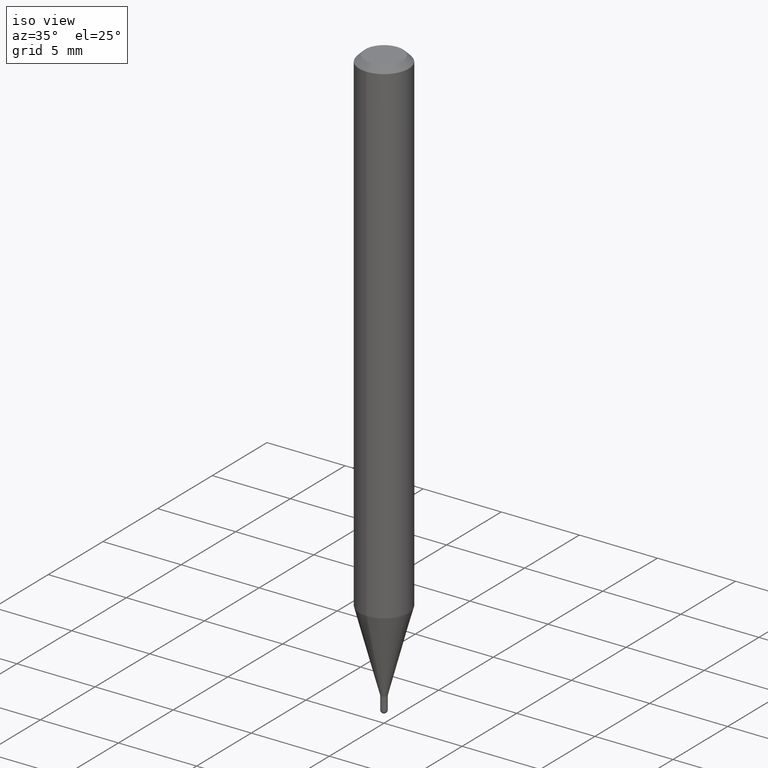
[diagram: clean part render]
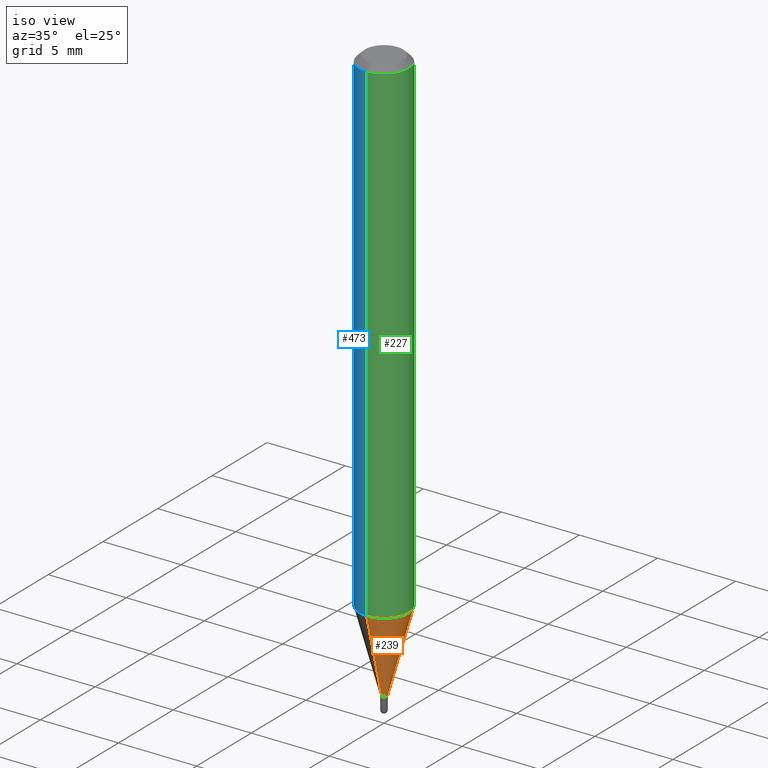
[diagram: same view with three faces highlighted in distinct colors, each labeled with its STEP entity id]
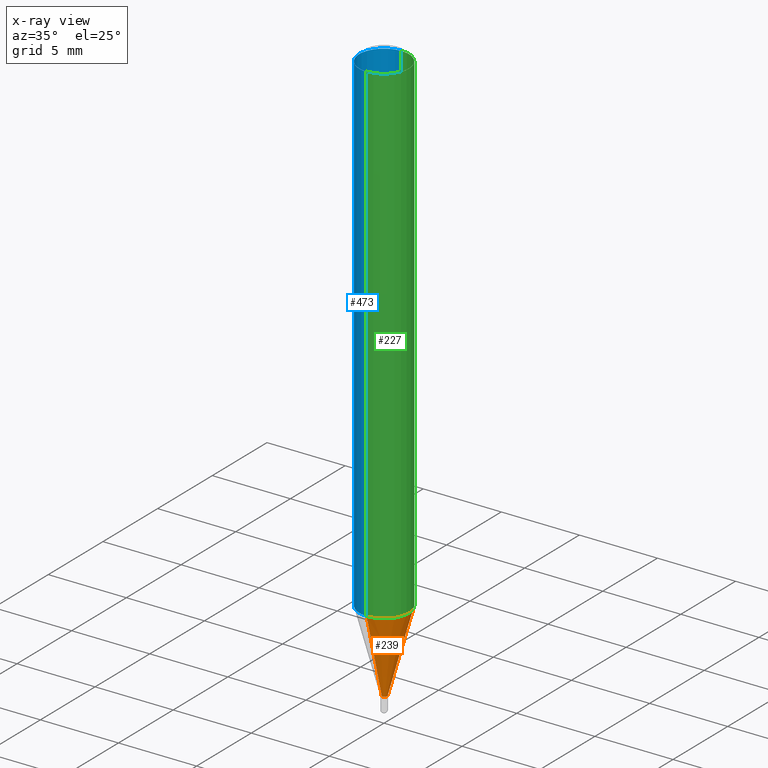
[diagram: x-ray of the same camera — body ghosted, the three highlighted faces saturated]
A machine part, iso view with three faces highlighted in distinct colors.
The next image is the same camera in x-ray (body ghosted, the three faces saturated) — at least one of them is partly hidden behind the body in this view.
Their STEP definitions:

[orange] entity #239 — the highlighted conical surface has half-angle 15 deg.
#68 = ORIENTED_EDGE ( 'NONE', *, *, #154, .T. ) ;
#72 = EDGE_CURVE ( 'NONE', #509, #439, #211, .T. ) ;
#92 = EDGE_CURVE ( 'NONE', #509, #178, #137, .T. ) ;
#94 = CARTESIAN_POINT ( 'NONE',  ( 3.060455742325940316E-29, -4.393134338761063639E-15, -1.254856820825981156 ) ) ;
#96 = CARTESIAN_POINT ( 'NONE',  ( -5.446710888591297207E-17, -0.007800000000004489974, -1.459000000000000519 ) ) ;
#102 = DIRECTION ( 'NONE',  ( -2.438888398687161749E-29, 3.500904856913780958E-15, 1.000000000000000000 ) ) ;
#134 = AXIS2_PLACEMENT_3D ( 'NONE', #94, #256, #412 ) ;
#137 = LINE ( 'NONE', #96, #465 ) ;
#154 = EDGE_CURVE ( 'NONE', #439, #202, #410, .T. ) ;
#155 = EDGE_CURVE ( 'NONE', #178, #202, #446, .T. ) ;
#178 = VERTEX_POINT ( 'NONE', #230 ) ;
#202 = VERTEX_POINT ( 'NONE', #391 ) ;
#211 = CIRCLE ( 'NONE', #401, 0.007799999999999381213 ) ;
#216 = DIRECTION ( 'NONE',  ( 1.839019923739600315E-15, 0.2588190451025249583, 0.9659258262890670910 ) ) ;
#225 = CARTESIAN_POINT ( 'NONE',  ( -5.446710888591297207E-17, -0.007800000000004489974, -1.459000000000000519 ) ) ;
#230 = CARTESIAN_POINT ( 'NONE',  ( -4.364351673553611504E-16, -0.06250000000000441314, -1.254856820825980934 ) ) ;
#239 = ADVANCED_FACE ( 'NONE', ( #352 ), #287, .T. ) ;
#256 = DIRECTION ( 'NONE',  ( -2.438888398687161749E-29, 3.500904856913780958E-15, 1.000000000000000000 ) ) ;
#265 = DIRECTION ( 'NONE',  ( -1.807323732225330139E-15, -0.2588190451025181860, 0.9659258262890689783 ) ) ;
#274 = EDGE_LOOP ( 'NONE', ( #344, #68, #443, #474 ) ) ;
#287 = CONICAL_SURFACE ( 'NONE', #413, 0.007799999999999381213, 0.2617993877991502960 ) ;
#294 = DIRECTION ( 'NONE',  ( -6.982962677686266711E-15, -1.000000000000000000, 0.000000000000000000 ) ) ;
#328 = CARTESIAN_POINT ( 'NONE',  ( 3.558338173684570517E-29, -5.107820186237207836E-15, -1.459000000000000519 ) ) ;
#340 = DIRECTION ( 'NONE',  ( -6.982962677686266711E-15, -1.000000000000000000, 0.000000000000000000 ) ) ;
#344 = ORIENTED_EDGE ( 'NONE', *, *, #72, .T. ) ;
#352 = FACE_OUTER_BOUND ( 'NONE', #274, .T. ) ;
#371 = VECTOR ( 'NONE', #216, 39.37007874015748143 ) ;
#391 = CARTESIAN_POINT ( 'NONE',  ( 4.440892098500931845E-16, 0.06249999999999561462, -1.254856820825981378 ) ) ;
#395 = CARTESIAN_POINT ( 'NONE',  ( 3.558338173684570517E-29, -5.107820186237207836E-15, -1.459000000000000519 ) ) ;
#401 = AXIS2_PLACEMENT_3D ( 'NONE', #328, #102, #294 ) ;
#410 = LINE ( 'NONE', #447, #371 ) ;
#412 = DIRECTION ( 'NONE',  ( -6.982962677686265922E-15, -1.000000000000000000, 4.370956789862819572E-15 ) ) ;
#413 = AXIS2_PLACEMENT_3D ( 'NONE', #395, #460, #340 ) ;
#439 = VERTEX_POINT ( 'NONE', #478 ) ;
#443 = ORIENTED_EDGE ( 'NONE', *, *, #155, .F. ) ;
#446 = CIRCLE ( 'NONE', #134, 0.06250000000000002776 ) ;
#447 = CARTESIAN_POINT ( 'NONE',  ( 5.542233338931899661E-17, 0.007799999999994273320, -1.459000000000000519 ) ) ;
#460 = DIRECTION ( 'NONE',  ( -2.438888398687161749E-29, 3.500904856913780958E-15, 1.000000000000000000 ) ) ;
#465 = VECTOR ( 'NONE', #265, 39.37007874015748143 ) ;
#474 = ORIENTED_EDGE ( 'NONE', *, *, #92, .F. ) ;
#478 = CARTESIAN_POINT ( 'NONE',  ( 2.497557716197062816E-16, 0.007799999999994272452, -1.459000000000000519 ) ) ;
#509 = VERTEX_POINT ( 'NONE', #225 ) ;

[blue] entity #473 — the highlighted cylindrical surface (edge-blend (fillet) strip) has radius 1.5875 mm, axis along (-0, 0, 1).
#35 = LINE ( 'NONE', #104, #484 ) ;
#49 = CARTESIAN_POINT ( 'NONE',  ( 3.658332598030829977E-31, -5.251357285370796693E-17, -0.01500000000000035853 ) ) ;
#56 = LINE ( 'NONE', #254, #80 ) ;
#59 = CARTESIAN_POINT ( 'NONE',  ( 3.060455742325940316E-29, -4.393134338761063639E-15, -1.254856820825981156 ) ) ;
#70 = ORIENTED_EDGE ( 'NONE', *, *, #506, .T. ) ;
#80 = VECTOR ( 'NONE', #483, 39.37007874015748143 ) ;
#87 = DIRECTION ( 'NONE',  ( -2.438888398687161749E-29, 3.500904856913780958E-15, 1.000000000000000000 ) ) ;
#88 = ORIENTED_EDGE ( 'NONE', *, *, #136, .F. ) ;
#93 = CYLINDRICAL_SURFACE ( 'NONE', #228, 0.06250000000000001388 ) ;
#104 = CARTESIAN_POINT ( 'NONE',  ( -4.364351673553917187E-16, -0.06250000000000001388, 2.188065535571113838E-16 ) ) ;
#127 = DIRECTION ( 'NONE',  ( -6.982962677686265922E-15, -1.000000000000000000, 3.500904856913781353E-15 ) ) ;
#136 = EDGE_CURVE ( 'NONE', #202, #505, #56, .T. ) ;
#149 = CARTESIAN_POINT ( 'NONE',  ( 4.440892098500935790E-16, 0.06249999999999996531, -0.01500000000000057884 ) ) ;
#151 = DIRECTION ( 'NONE',  ( -6.982962677686265922E-15, -1.000000000000000000, 4.370956789862819572E-15 ) ) ;
#178 = VERTEX_POINT ( 'NONE', #230 ) ;
#190 = CARTESIAN_POINT ( 'NONE',  ( -4.364351673553913736E-16, -0.06250000000000006939, -0.01500000000000013822 ) ) ;
#202 = VERTEX_POINT ( 'NONE', #391 ) ;
#206 = EDGE_CURVE ( 'NONE', #178, #236, #35, .T. ) ;
#228 = AXIS2_PLACEMENT_3D ( 'NONE', #285, #87, #127 ) ;
#230 = CARTESIAN_POINT ( 'NONE',  ( -4.364351673553611504E-16, -0.06250000000000441314, -1.254856820825980934 ) ) ;
#236 = VERTEX_POINT ( 'NONE', #190 ) ;
#237 = CIRCLE ( 'NONE', #444, 0.06250000000000001388 ) ;
#246 = EDGE_LOOP ( 'NONE', ( #88, #70, #364, #463 ) ) ;
#254 = CARTESIAN_POINT ( 'NONE',  ( 4.440892098500627148E-16, 0.06250000000000001388, -2.188065535571113838E-16 ) ) ;
#259 = AXIS2_PLACEMENT_3D ( 'NONE', #59, #418, #151 ) ;
#285 = CARTESIAN_POINT ( 'NONE',  ( 0.000000000000000000, 0.000000000000000000, 0.000000000000000000 ) ) ;
#318 = DIRECTION ( 'NONE',  ( -2.438888398687161749E-29, 3.500904856913780958E-15, 1.000000000000000000 ) ) ;
#363 = CIRCLE ( 'NONE', #259, 0.06250000000000002776 ) ;
#364 = ORIENTED_EDGE ( 'NONE', *, *, #206, .T. ) ;
#367 = FACE_OUTER_BOUND ( 'NONE', #246, .T. ) ;
#391 = CARTESIAN_POINT ( 'NONE',  ( 4.440892098500931845E-16, 0.06249999999999561462, -1.254856820825981378 ) ) ;
#418 = DIRECTION ( 'NONE',  ( -2.438888398687161749E-29, 3.500904856913780958E-15, 1.000000000000000000 ) ) ;
#431 = EDGE_CURVE ( 'NONE', #505, #236, #237, .T. ) ;
#438 = DIRECTION ( 'NONE',  ( -2.438888398687161749E-29, 3.500904856913780958E-15, 1.000000000000000000 ) ) ;
#444 = AXIS2_PLACEMENT_3D ( 'NONE', #49, #318, #485 ) ;
#463 = ORIENTED_EDGE ( 'NONE', *, *, #431, .F. ) ;
#473 = ADVANCED_FACE ( 'NONE', ( #367 ), #93, .T. ) ;
#483 = DIRECTION ( 'NONE',  ( -2.438888398687161749E-29, 3.500904856913780958E-15, 1.000000000000000000 ) ) ;
#484 = VECTOR ( 'NONE', #438, 39.37007874015748143 ) ;
#485 = DIRECTION ( 'NONE',  ( -6.982962677686265922E-15, -1.000000000000000000, 3.517254291842738179E-15 ) ) ;
#505 = VERTEX_POINT ( 'NONE', #149 ) ;
#506 = EDGE_CURVE ( 'NONE', #202, #178, #363, .T. ) ;

[green] entity #227 — the highlighted cylindrical surface (edge-blend (fillet) strip) has radius 1.5875 mm, axis along (-0, 0, 1).
#9 = ORIENTED_EDGE ( 'NONE', *, *, #136, .T. ) ;
#35 = LINE ( 'NONE', #104, #484 ) ;
#56 = LINE ( 'NONE', #254, #80 ) ;
#74 = EDGE_LOOP ( 'NONE', ( #405, #9, #248, #396 ) ) ;
#79 = CARTESIAN_POINT ( 'NONE',  ( 0.000000000000000000, 0.000000000000000000, 0.000000000000000000 ) ) ;
#80 = VECTOR ( 'NONE', #483, 39.37007874015748143 ) ;
#94 = CARTESIAN_POINT ( 'NONE',  ( 3.060455742325940316E-29, -4.393134338761063639E-15, -1.254856820825981156 ) ) ;
#104 = CARTESIAN_POINT ( 'NONE',  ( -4.364351673553917187E-16, -0.06250000000000001388, 2.188065535571113838E-16 ) ) ;
#131 = DIRECTION ( 'NONE',  ( -2.438888398687161749E-29, 3.500904856913780958E-15, 1.000000000000000000 ) ) ;
#134 = AXIS2_PLACEMENT_3D ( 'NONE', #94, #256, #412 ) ;
#136 = EDGE_CURVE ( 'NONE', #202, #505, #56, .T. ) ;
#149 = CARTESIAN_POINT ( 'NONE',  ( 4.440892098500935790E-16, 0.06249999999999996531, -0.01500000000000057884 ) ) ;
#155 = EDGE_CURVE ( 'NONE', #178, #202, #446, .T. ) ;
#170 = CIRCLE ( 'NONE', #317, 0.06250000000000001388 ) ;
#178 = VERTEX_POINT ( 'NONE', #230 ) ;
#179 = DIRECTION ( 'NONE',  ( -6.982962677686265922E-15, -1.000000000000000000, 3.517254291842738179E-15 ) ) ;
#189 = CYLINDRICAL_SURFACE ( 'NONE', #402, 0.06250000000000001388 ) ;
#190 = CARTESIAN_POINT ( 'NONE',  ( -4.364351673553913736E-16, -0.06250000000000006939, -0.01500000000000013822 ) ) ;
#202 = VERTEX_POINT ( 'NONE', #391 ) ;
#206 = EDGE_CURVE ( 'NONE', #178, #236, #35, .T. ) ;
#208 = CARTESIAN_POINT ( 'NONE',  ( 3.658332598030829977E-31, -5.251357285370796693E-17, -0.01500000000000035853 ) ) ;
#227 = ADVANCED_FACE ( 'NONE', ( #457 ), #189, .T. ) ;
#230 = CARTESIAN_POINT ( 'NONE',  ( -4.364351673553611504E-16, -0.06250000000000441314, -1.254856820825980934 ) ) ;
#236 = VERTEX_POINT ( 'NONE', #190 ) ;
#248 = ORIENTED_EDGE ( 'NONE', *, *, #339, .F. ) ;
#254 = CARTESIAN_POINT ( 'NONE',  ( 4.440892098500627148E-16, 0.06250000000000001388, -2.188065535571113838E-16 ) ) ;
#256 = DIRECTION ( 'NONE',  ( -2.438888398687161749E-29, 3.500904856913780958E-15, 1.000000000000000000 ) ) ;
#270 = DIRECTION ( 'NONE',  ( -2.438888398687161749E-29, 3.500904856913780958E-15, 1.000000000000000000 ) ) ;
#273 = DIRECTION ( 'NONE',  ( -6.982962677686265922E-15, -1.000000000000000000, 3.500904856913781353E-15 ) ) ;
#317 = AXIS2_PLACEMENT_3D ( 'NONE', #208, #131, #179 ) ;
#339 = EDGE_CURVE ( 'NONE', #236, #505, #170, .T. ) ;
#391 = CARTESIAN_POINT ( 'NONE',  ( 4.440892098500931845E-16, 0.06249999999999561462, -1.254856820825981378 ) ) ;
#396 = ORIENTED_EDGE ( 'NONE', *, *, #206, .F. ) ;
#402 = AXIS2_PLACEMENT_3D ( 'NONE', #79, #270, #273 ) ;
#405 = ORIENTED_EDGE ( 'NONE', *, *, #155, .T. ) ;
#412 = DIRECTION ( 'NONE',  ( -6.982962677686265922E-15, -1.000000000000000000, 4.370956789862819572E-15 ) ) ;
#438 = DIRECTION ( 'NONE',  ( -2.438888398687161749E-29, 3.500904856913780958E-15, 1.000000000000000000 ) ) ;
#446 = CIRCLE ( 'NONE', #134, 0.06250000000000002776 ) ;
#457 = FACE_OUTER_BOUND ( 'NONE', #74, .T. ) ;
#483 = DIRECTION ( 'NONE',  ( -2.438888398687161749E-29, 3.500904856913780958E-15, 1.000000000000000000 ) ) ;
#484 = VECTOR ( 'NONE', #438, 39.37007874015748143 ) ;
#505 = VERTEX_POINT ( 'NONE', #149 ) ;